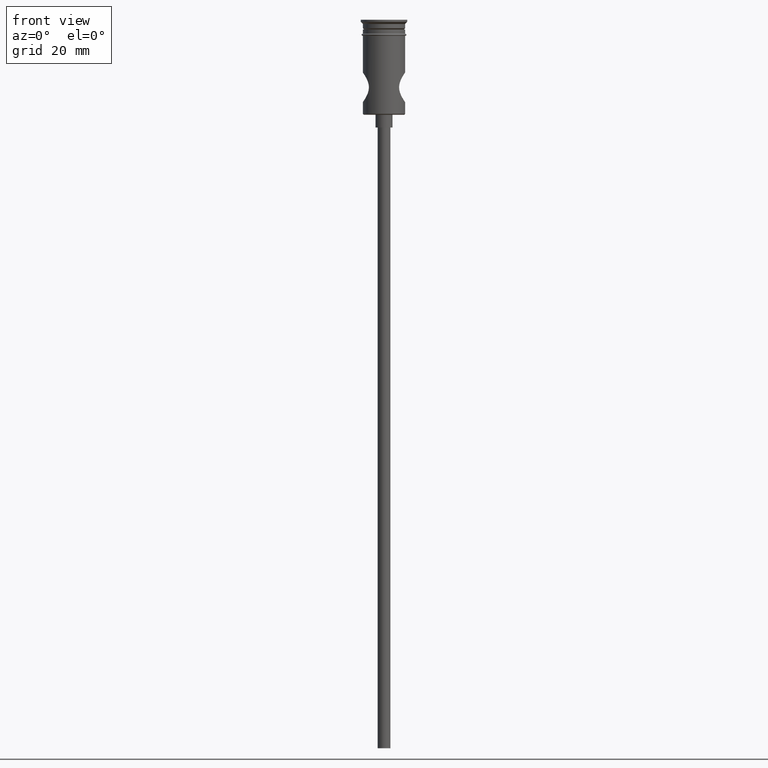
[diagram: clean part render]
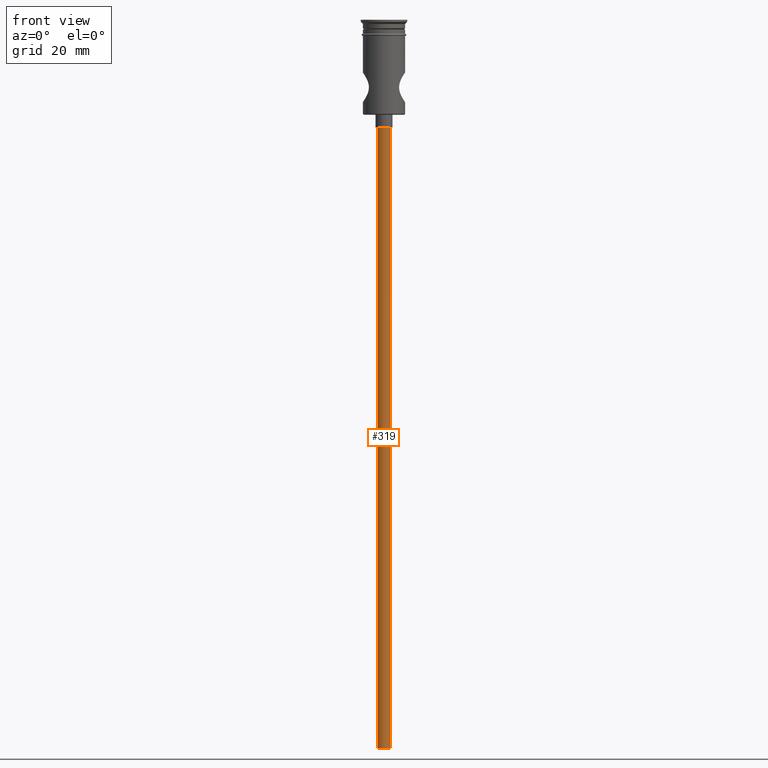
[diagram: same view with one face highlighted and labeled with its STEP entity id]
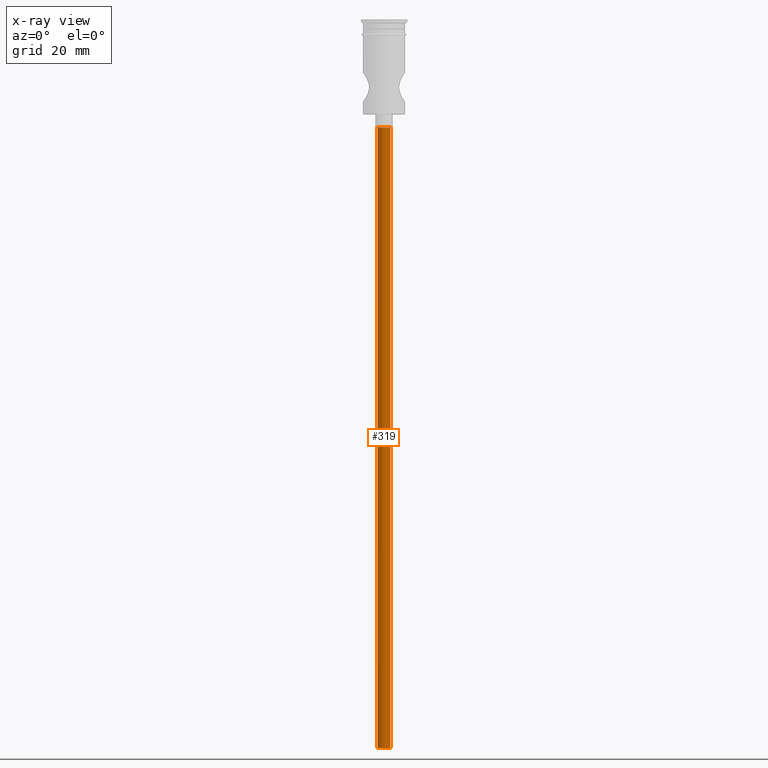
[diagram: x-ray of the same camera — body ghosted, the highlighted face saturated]
A machine part, front view. The second image highlights one B-rep face of the part: STEP entity #319.
The next image is the same camera in x-ray: the body ghosted, the highlighted face saturated — about 0% of this face is hidden behind the body in this view.
In plain terms, the highlighted cylindrical surface (edge-blend (fillet) strip) has radius 1.5 mm, axis along (-0, -0, 1).
Its self-contained STEP definition (entity closure, byte-faithful):
#102 = DIRECTION ( 'NONE',  ( -1.000000000000000000, 0.000000000000000000, 0.000000000000000000 ) ) ;
#211 = DIRECTION ( 'NONE',  ( 0.000000000000000000, 0.000000000000000000, -1.000000000000000000 ) ) ;
#219 = VECTOR ( 'NONE', #1039, 1000.000000000000000 ) ;
#319 = ADVANCED_FACE ( 'NONE', ( #388 ), #747, .T. ) ;
#321 = CARTESIAN_POINT ( 'NONE',  ( -1.500000000000000222, 1.836970198721030181E-16, -172.5000000000000000 ) ) ;
#333 = AXIS2_PLACEMENT_3D ( 'NONE', #852, #407, #1420 ) ;
#388 = FACE_OUTER_BOUND ( 'NONE', #1290, .T. ) ;
#407 = DIRECTION ( 'NONE',  ( 0.000000000000000000, 0.000000000000000000, -1.000000000000000000 ) ) ;
#468 = CARTESIAN_POINT ( 'NONE',  ( -1.500000000000000222, 1.836970198721030181E-16, -25.50000000000000000 ) ) ;
#506 = CARTESIAN_POINT ( 'NONE',  ( 1.500000000000000222, 0.000000000000000000, -25.50000000000000000 ) ) ;
#547 = VERTEX_POINT ( 'NONE', #321 ) ;
#601 = ORIENTED_EDGE ( 'NONE', *, *, #1265, .T. ) ;
#670 = EDGE_CURVE ( 'NONE', #547, #1118, #1409, .T. ) ;
#694 = CARTESIAN_POINT ( 'NONE',  ( 1.500000000000000222, 0.000000000000000000, -172.5000000000000000 ) ) ;
#747 = CYLINDRICAL_SURFACE ( 'NONE', #1436, 1.500000000000000222 ) ;
#751 = ORIENTED_EDGE ( 'NONE', *, *, #1114, .T. ) ;
#793 = CIRCLE ( 'NONE', #333, 1.500000000000000222 ) ;
#802 = ORIENTED_EDGE ( 'NONE', *, *, #670, .F. ) ;
#852 = CARTESIAN_POINT ( 'NONE',  ( 0.000000000000000000, 0.000000000000000000, -25.50000000000000000 ) ) ;
#878 = CARTESIAN_POINT ( 'NONE',  ( 0.000000000000000000, 0.000000000000000000, -172.5000000000000000 ) ) ;
#898 = LINE ( 'NONE', #694, #219 ) ;
#901 = VERTEX_POINT ( 'NONE', #506 ) ;
#941 = AXIS2_PLACEMENT_3D ( 'NONE', #878, #211, #102 ) ;
#964 = CARTESIAN_POINT ( 'NONE',  ( 0.000000000000000000, 0.000000000000000000, -172.5000000000000000 ) ) ;
#1039 = DIRECTION ( 'NONE',  ( -0.000000000000000000, -0.000000000000000000, 1.000000000000000000 ) ) ;
#1093 = DIRECTION ( 'NONE',  ( -0.000000000000000000, -0.000000000000000000, 1.000000000000000000 ) ) ;
#1114 = EDGE_CURVE ( 'NONE', #1251, #901, #898, .T. ) ;
#1118 = VERTEX_POINT ( 'NONE', #468 ) ;
#1199 = VECTOR ( 'NONE', #1215, 1000.000000000000000 ) ;
#1215 = DIRECTION ( 'NONE',  ( -0.000000000000000000, -0.000000000000000000, 1.000000000000000000 ) ) ;
#1223 = CIRCLE ( 'NONE', #941, 1.500000000000000222 ) ;
#1251 = VERTEX_POINT ( 'NONE', #1291 ) ;
#1265 = EDGE_CURVE ( 'NONE', #901, #1118, #793, .T. ) ;
#1290 = EDGE_LOOP ( 'NONE', ( #802, #1348, #751, #601 ) ) ;
#1291 = CARTESIAN_POINT ( 'NONE',  ( 1.500000000000000222, 0.000000000000000000, -172.5000000000000000 ) ) ;
#1301 = CARTESIAN_POINT ( 'NONE',  ( -1.500000000000000222, 1.836970198721030181E-16, -172.5000000000000000 ) ) ;
#1305 = DIRECTION ( 'NONE',  ( 1.000000000000000000, 0.000000000000000000, 0.000000000000000000 ) ) ;
#1313 = EDGE_CURVE ( 'NONE', #1251, #547, #1223, .T. ) ;
#1348 = ORIENTED_EDGE ( 'NONE', *, *, #1313, .F. ) ;
#1409 = LINE ( 'NONE', #1301, #1199 ) ;
#1420 = DIRECTION ( 'NONE',  ( -1.000000000000000000, 0.000000000000000000, 0.000000000000000000 ) ) ;
#1436 = AXIS2_PLACEMENT_3D ( 'NONE', #964, #1093, #1305 ) ;